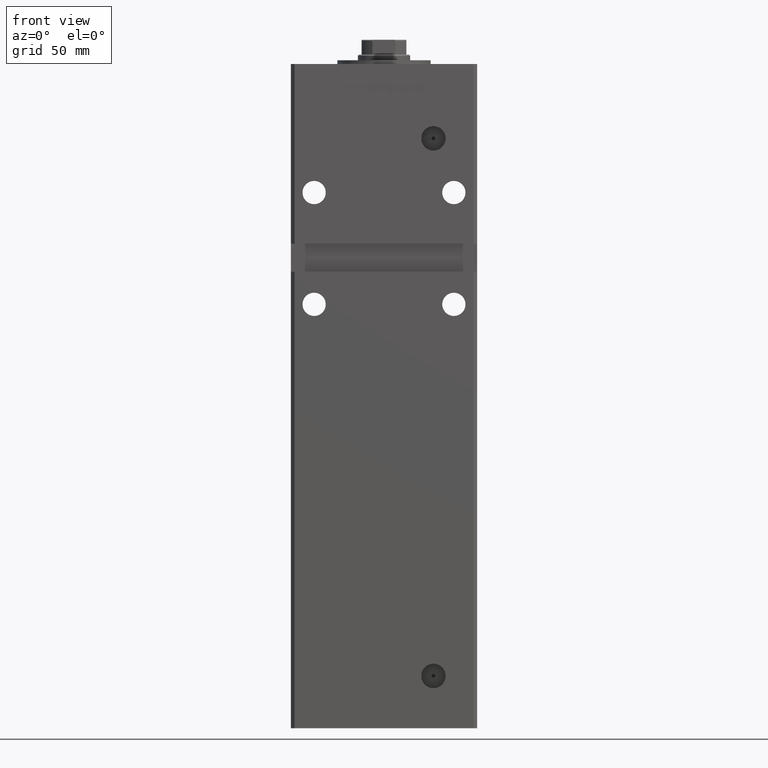
[diagram: clean part render]
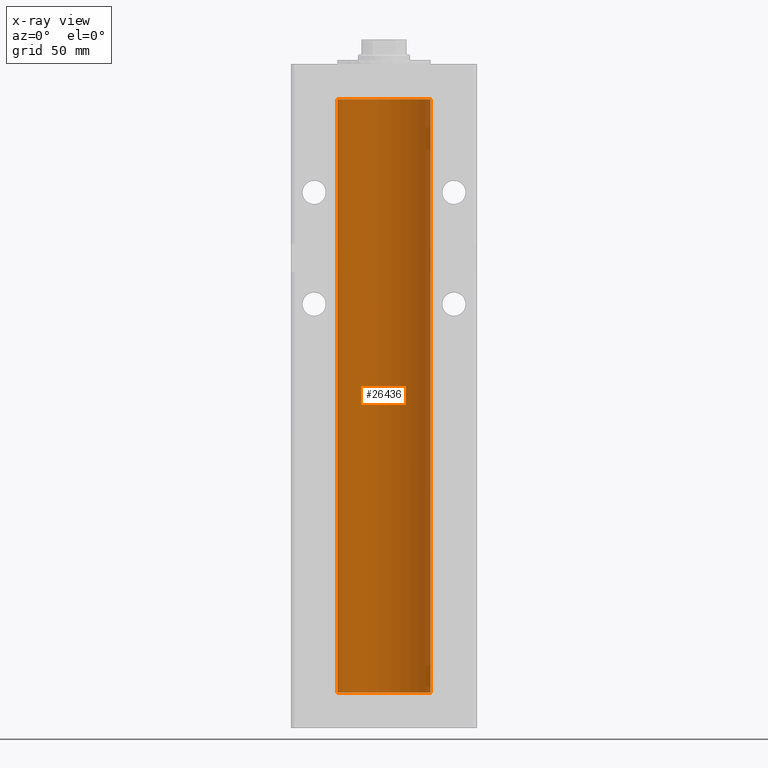
[diagram: x-ray — body ghosted, one internal face saturated and labeled with its STEP entity id]
A machine part, front view, then the same camera in x-ray: the body is ghosted and one INTERNAL B-rep face — a face not visible from any outside direction — is saturated and labeled: STEP entity #26436.
In plain terms, the highlighted cylindrical surface (partial cylindrical patch) has radius 25 mm, axis along (-0, -0, -1).
Its self-contained STEP definition (entity closure, byte-faithful):
#452 = DIRECTION ( 'NONE',  ( -0.000000000000000000, -0.000000000000000000, -1.000000000000000000 ) ) ;
#707 = AXIS2_PLACEMENT_3D ( 'NONE', #1818, #46181, #13403 ) ;
#723 = LINE ( 'NONE', #12317, #50582 ) ;
#1303 = VERTEX_POINT ( 'NONE', #36980 ) ;
#1818 = CARTESIAN_POINT ( 'NONE',  ( 0.000000000000000000, 0.000000000000000000, 318.5000000000000000 ) ) ;
#3483 = EDGE_CURVE ( 'NONE', #1303, #13535, #45013, .T. ) ;
#4280 = EDGE_CURVE ( 'NONE', #13535, #36838, #49962, .T. ) ;
#5366 = CARTESIAN_POINT ( 'NONE',  ( -25.00000000000000000, 0.000000000000000000, 318.5000000000000000 ) ) ;
#7522 = EDGE_LOOP ( 'NONE', ( #43146, #30058, #40437, #38627 ) ) ;
#10309 = CARTESIAN_POINT ( 'NONE',  ( 0.000000000000000000, 0.000000000000000000, 318.5000000000000000 ) ) ;
#12317 = CARTESIAN_POINT ( 'NONE',  ( 25.00000000000000000, 3.061616997868383043E-15, 318.5000000000000000 ) ) ;
#13403 = DIRECTION ( 'NONE',  ( -1.000000000000000000, 0.000000000000000000, 0.000000000000000000 ) ) ;
#13535 = VERTEX_POINT ( 'NONE', #35973 ) ;
#18196 = CARTESIAN_POINT ( 'NONE',  ( -25.00000000000000000, 0.000000000000000000, 0.000000000000000000 ) ) ;
#19426 = AXIS2_PLACEMENT_3D ( 'NONE', #35363, #51732, #39945 ) ;
#19487 = EDGE_CURVE ( 'NONE', #28745, #36838, #33127, .T. ) ;
#21733 = CYLINDRICAL_SURFACE ( 'NONE', #707, 25.00000000000000000 ) ;
#26436 = ADVANCED_FACE ( 'NONE', ( #50184 ), #21733, .F. ) ;
#28745 = VERTEX_POINT ( 'NONE', #41545 ) ;
#30058 = ORIENTED_EDGE ( 'NONE', *, *, #3483, .T. ) ;
#32541 = EDGE_CURVE ( 'NONE', #1303, #28745, #723, .T. ) ;
#33127 = CIRCLE ( 'NONE', #19426, 25.00000000000000000 ) ;
#35363 = CARTESIAN_POINT ( 'NONE',  ( 0.000000000000000000, 0.000000000000000000, 0.000000000000000000 ) ) ;
#35973 = CARTESIAN_POINT ( 'NONE',  ( -25.00000000000000000, 0.000000000000000000, 318.5000000000000000 ) ) ;
#36838 = VERTEX_POINT ( 'NONE', #18196 ) ;
#36980 = CARTESIAN_POINT ( 'NONE',  ( 25.00000000000000000, 3.061616997868383043E-15, 318.5000000000000000 ) ) ;
#38627 = ORIENTED_EDGE ( 'NONE', *, *, #19487, .F. ) ;
#39945 = DIRECTION ( 'NONE',  ( 1.000000000000000000, 0.000000000000000000, 0.000000000000000000 ) ) ;
#40437 = ORIENTED_EDGE ( 'NONE', *, *, #4280, .T. ) ;
#41545 = CARTESIAN_POINT ( 'NONE',  ( 25.00000000000000000, 3.061616997868383043E-15, 0.000000000000000000 ) ) ;
#43146 = ORIENTED_EDGE ( 'NONE', *, *, #32541, .F. ) ;
#43353 = DIRECTION ( 'NONE',  ( -0.000000000000000000, 0.000000000000000000, 1.000000000000000000 ) ) ;
#45013 = CIRCLE ( 'NONE', #45903, 25.00000000000000000 ) ;
#45903 = AXIS2_PLACEMENT_3D ( 'NONE', #10309, #43353, #50859 ) ;
#46181 = DIRECTION ( 'NONE',  ( -0.000000000000000000, -0.000000000000000000, -1.000000000000000000 ) ) ;
#49962 = LINE ( 'NONE', #5366, #51065 ) ;
#50184 = FACE_OUTER_BOUND ( 'NONE', #7522, .T. ) ;
#50499 = DIRECTION ( 'NONE',  ( -0.000000000000000000, -0.000000000000000000, -1.000000000000000000 ) ) ;
#50582 = VECTOR ( 'NONE', #452, 1000.000000000000000 ) ;
#50859 = DIRECTION ( 'NONE',  ( 1.000000000000000000, 0.000000000000000000, 0.000000000000000000 ) ) ;
#51065 = VECTOR ( 'NONE', #50499, 1000.000000000000000 ) ;
#51732 = DIRECTION ( 'NONE',  ( -0.000000000000000000, 0.000000000000000000, 1.000000000000000000 ) ) ;